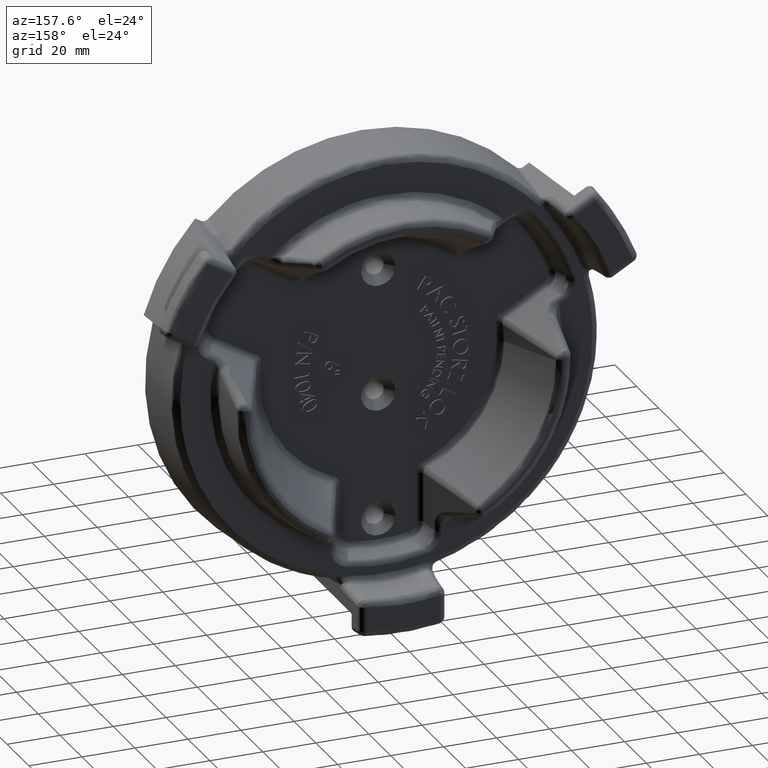
[diagram: clean part render]
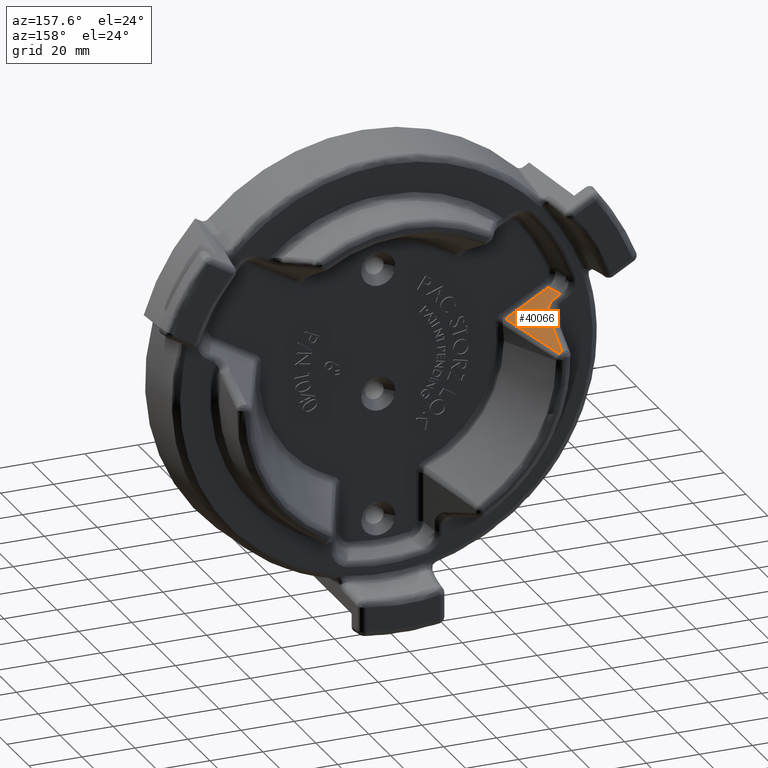
[diagram: same view with one face highlighted and labeled with its STEP entity id]
A machine part, auxiliary view. The second image highlights one B-rep face of the part: STEP entity #40066.
In plain terms, the highlighted planar face has unit normal (0.4532, 0.4226, 0.7849).
Its self-contained STEP definition (entity closure, byte-faithful):
#2890 = PLANE ( 'NONE',  #28716 ) ;
#2897 = CARTESIAN_POINT ( 'NONE',  ( -2.568653630999999700, 0.5091295380000001600, 0.7321792120000002500 ) ) ;
#2928 = DIRECTION ( 'NONE',  ( 0.4531538941523392000, 0.4226182619830112800, 0.7848855667248758600 ) ) ;
#2930 = DIRECTION ( 'NONE',  ( 0.8660254033445590200, 0.0000000000000000000, -0.5000000007618935500 ) ) ;
#7904 = CARTESIAN_POINT ( 'NONE',  ( -2.341099454531849300, 1.395870461851245400, 0.1233389055789617200 ) ) ;
#8159 = CARTESIAN_POINT ( 'NONE',  ( -2.362967724100074400, 0.8670287590276200000, 0.4207170999361812800 ) ) ;
#8199 = CARTESIAN_POINT ( 'NONE',  ( -2.501619528943516800, 0.5091295409397615900, 0.6934770535298403500 ) ) ;
#8250 = CARTESIAN_POINT ( 'NONE',  ( -2.520406490273561200, 0.6958704620152044200, 0.6037738635999748700 ) ) ;
#8272 = CARTESIAN_POINT ( 'NONE',  ( -2.608015006943183300, 0.6958704659244574500, 0.6543546623792001500 ) ) ;
#9823 = ORIENTED_EDGE ( 'NONE', *, *, #24463, .T. ) ;
#9857 = ORIENTED_EDGE ( 'NONE', *, *, #24575, .T. ) ;
#9884 = ORIENTED_EDGE ( 'NONE', *, *, #24580, .T. ) ;
#9949 = ORIENTED_EDGE ( 'NONE', *, *, #29890, .F. ) ;
#10425 = ORIENTED_EDGE ( 'NONE', *, *, #16935, .T. ) ;
#10462 = ORIENTED_EDGE ( 'NONE', *, *, #24467, .T. ) ;
#10463 = ORIENTED_EDGE ( 'NONE', *, *, #24578, .T. ) ;
#12229 = LINE ( 'NONE', #13858, #12249 ) ;
#12249 = VECTOR ( 'NONE', #13870, 39.37007874015748900 ) ;
#12623 = VECTOR ( 'NONE', #15595, 39.37007874015748900 ) ;
#12628 = LINE ( 'NONE', #17936, #12637 ) ;
#12637 = VECTOR ( 'NONE', #17940, 39.37007874015748900 ) ;
#13033 = LINE ( 'NONE', #15594, #12623 ) ;
#13858 = CARTESIAN_POINT ( 'NONE',  ( -2.319716769447766100, 1.395870461723433400, 0.1109936063826113300 ) ) ;
#13870 = DIRECTION ( 'NONE',  ( -0.8660254028427399900, 8.792265849453573400E-010, 0.5000000016310698300 ) ) ;
#15248 = B_SPLINE_CURVE_WITH_KNOTS ( 'NONE', 3,
 ( #17944, #17950, #17951, #17952 ),
 .UNSPECIFIED., .F., .F.,
 ( 4, 4 ),
 ( 0.0000000000000000000, 1.000000000000000000 ),
 .UNSPECIFIED. ) ;
#15265 = B_SPLINE_CURVE_WITH_KNOTS ( 'NONE', 3,
 ( #17953, #17957, #17958, #17959 ),
 .UNSPECIFIED., .F., .F.,
 ( 4, 4 ),
 ( 0.0000000000000000000, 1.000000000000000000 ),
 .UNSPECIFIED. ) ;
#15510 = CARTESIAN_POINT ( 'NONE',  ( -2.608015006943183300, 0.6958704659244574500, 0.6543546623792001500 ) ) ;
#15553 = CARTESIAN_POINT ( 'NONE',  ( -2.572345726670697700, 0.6327419460838940000, 0.6677522742691967000 ) ) ;
#15554 = CARTESIAN_POINT ( 'NONE',  ( -2.536880565388445000, 0.5704949704445545500, 0.6807930704699893800 ) ) ;
#15555 = CARTESIAN_POINT ( 'NONE',  ( -2.501619528943516800, 0.5091295409397615900, 0.6934770535298403500 ) ) ;
#15594 = CARTESIAN_POINT ( 'NONE',  ( -2.564210746471424300, 0.6958704619368619700, 0.6290642623416344800 ) ) ;
#15595 = DIRECTION ( 'NONE',  ( -0.8660254037321747400, 4.972662646149016100E-011, 0.5000000000905235900 ) ) ;
#16935 = EDGE_CURVE ( 'NONE', #37100, #42006, #12229, .T. ) ;
#17936 = CARTESIAN_POINT ( 'NONE',  ( -2.216309826999999900, 0.5091295380000001600, 0.5287534215000002600 ) ) ;
#17940 = DIRECTION ( 'NONE',  ( 0.8660254033445592400, 0.0000000000000000000, -0.5000000007618935500 ) ) ;
#17944 = CARTESIAN_POINT ( 'NONE',  ( -1.868144018131253900, 0.5091295355360172500, 0.3277397989862454500 ) ) ;
#17950 = CARTESIAN_POINT ( 'NONE',  ( -2.006873558424338500, 0.7847238391865623000, 0.2594427675358693700 ) ) ;
#17951 = CARTESIAN_POINT ( 'NONE',  ( -2.150270238410552100, 1.080304151306402400, 0.1830789300782457400 ) ) ;
#17952 = CARTESIAN_POINT ( 'NONE',  ( -2.298334084389318300, 1.395870461663595100, 0.09864830767486992800 ) ) ;
#17953 = CARTESIAN_POINT ( 'NONE',  ( -2.341099454531849300, 1.395870461851245400, 0.1233389055789617200 ) ) ;
#17957 = CARTESIAN_POINT ( 'NONE',  ( -2.353870750015259400, 1.226388382126582600, 0.2219693139084681400 ) ) ;
#17958 = CARTESIAN_POINT ( 'NONE',  ( -2.361160172913348900, 1.050107814888292300, 0.3210953784183154200 ) ) ;
#17959 = CARTESIAN_POINT ( 'NONE',  ( -2.362967724100074400, 0.8670287590276200000, 0.4207170999361812800 ) ) ;
#24463 = EDGE_CURVE ( 'NONE', #42911, #42870, #28819, .T. ) ;
#24467 = EDGE_CURVE ( 'NONE', #42898, #42911, #13033, .T. ) ;
#24575 = EDGE_CURVE ( 'NONE', #42870, #37408, #12628, .T. ) ;
#24578 = EDGE_CURVE ( 'NONE', #37408, #37100, #15248, .T. ) ;
#24580 = EDGE_CURVE ( 'NONE', #42006, #42850, #15265, .T. ) ;
#25791 = CARTESIAN_POINT ( 'NONE',  ( -2.520406490273561200, 0.6958704620152044200, 0.6037738635999748700 ) ) ;
#25796 = CARTESIAN_POINT ( 'NONE',  ( -2.508933902000000800, 0.6958704620000002400, 0.5971501610000001800 ) ) ;
#25797 = CARTESIAN_POINT ( 'NONE',  ( -2.497840662999999900, 0.6971231030000002400, 0.5900709980000002900 ) ) ;
#25798 = CARTESIAN_POINT ( 'NONE',  ( -2.484413024000000200, 0.7001343980000001000, 0.5806971280000002800 ) ) ;
#25799 = CARTESIAN_POINT ( 'NONE',  ( -2.481742282000000400, 0.7008118260000002500, 0.5787904160000004700 ) ) ;
#25800 = CARTESIAN_POINT ( 'NONE',  ( -2.476485735999999900, 0.7023002710000001400, 0.5749541020000003000 ) ) ;
#25801 = CARTESIAN_POINT ( 'NONE',  ( -2.473901723000000000, 0.7031102080000001300, 0.5730261140000002500 ) ) ;
#25802 = CARTESIAN_POINT ( 'NONE',  ( -2.466276472000000100, 0.7057282660000002700, 0.5672139910000001400 ) ) ;
#25803 = CARTESIAN_POINT ( 'NONE',  ( -2.461361696000000400, 0.7077241490000001400, 0.5633017690000001700 ) ) ;
#25804 = CARTESIAN_POINT ( 'NONE',  ( -2.447089482000000900, 0.7144127689999998400, 0.5514602440000001500 ) ) ;
#25805 = CARTESIAN_POINT ( 'NONE',  ( -2.438200456000000600, 0.7198009750000001800, 0.5434269060000002100 ) ) ;
#25806 = CARTESIAN_POINT ( 'NONE',  ( -2.427826398000001000, 0.7276308190000002600, 0.5332214950000001600 ) ) ;
#25807 = CARTESIAN_POINT ( 'NONE',  ( -2.425788753000000900, 0.7292519710000000500, 0.5311721570000000900 ) ) ;
#25808 = CARTESIAN_POINT ( 'NONE',  ( -2.421787861000001200, 0.7326047350000002300, 0.5270569600000000200 ) ) ;
#25809 = CARTESIAN_POINT ( 'NONE',  ( -2.419820200000000600, 0.7343405700000000800, 0.5249862770000001100 ) ) ;
#25810 = CARTESIAN_POINT ( 'NONE',  ( -2.414068488999999900, 0.7396780790000002700, 0.5187915660000002000 ) ) ;
#25811 = CARTESIAN_POINT ( 'NONE',  ( -2.410435604999999500, 0.7434069949999997400, 0.5146863009999996800 ) ) ;
#25812 = CARTESIAN_POINT ( 'NONE',  ( -2.400112272999999500, 0.7550805529999998800, 0.5024405459999999900 ) ) ;
#25813 = CARTESIAN_POINT ( 'NONE',  ( -2.393992682999999600, 0.7635082289999998200, 0.4943695530000000200 ) ) ;
#25814 = CARTESIAN_POINT ( 'NONE',  ( -2.385929983999999200, 0.7770946309999999800, 0.4823990120000000200 ) ) ;
#25815 = CARTESIAN_POINT ( 'NONE',  ( -2.383429672999999700, 0.7817818790000000700, 0.4784316280000000000 ) ) ;
#25816 = CARTESIAN_POINT ( 'NONE',  ( -2.379967272999999700, 0.7890564999999999400, 0.4725156220000000200 ) ) ;
#25817 = CARTESIAN_POINT ( 'NONE',  ( -2.378862151999999100, 0.7915209020000000300, 0.4705506330000000500 ) ) ;
#25818 = CARTESIAN_POINT ( 'NONE',  ( -2.376767362999999000, 0.7964882349999998800, 0.4666665670000000900 ) ) ;
#25819 = CARTESIAN_POINT ( 'NONE',  ( -2.375775129999999200, 0.7989963989999999700, 0.4647431910000000000 ) ) ;
#25820 = CARTESIAN_POINT ( 'NONE',  ( -2.371086827999999700, 0.8116583879999999000, 0.4552186050000000500 ) ) ;
#25821 = CARTESIAN_POINT ( 'NONE',  ( -2.368202418999999300, 0.8221726570000000800, 0.4478919270000000800 ) ) ;
#25822 = CARTESIAN_POINT ( 'NONE',  ( -2.364201981000000300, 0.8439865030000000000, 0.4338367020000000700 ) ) ;
#25823 = CARTESIAN_POINT ( 'NONE',  ( -2.363083613999999800, 0.8552858030000001200, 0.4271069530000000100 ) ) ;
#25824 = CARTESIAN_POINT ( 'NONE',  ( -2.362967724100074400, 0.8670287590276200000, 0.4207170999361812800 ) ) ;
#28716 = AXIS2_PLACEMENT_3D ( 'NONE', #2897, #2928, #2930 ) ;
#28819 = B_SPLINE_CURVE_WITH_KNOTS ( 'NONE', 3,
 ( #15510, #15553, #15554, #15555 ),
 .UNSPECIFIED., .F., .F.,
 ( 4, 4 ),
 ( 0.0000000000000000000, 1.000000000000000000 ),
 .UNSPECIFIED. ) ;
#29870 = B_SPLINE_CURVE_WITH_KNOTS ( 'NONE', 3,
 ( #25791, #25796, #25797, #25798, #25799, #25800, #25801, #25802, #25803, #25804, #25805, #25806, #25807, #25808, #25809, #25810, #25811, #25812, #25813, #25814, #25815, #25816, #25817, #25818, #25819, #25820, #25821, #25822, #25823, #25824 ),
 .UNSPECIFIED., .F., .F.,
 ( 4, 2, 2, 2, 2, 2, 2, 2, 2, 2, 2, 2, 2, 2, 4 ),
 ( 0.0000000000000000000, 0.1249999999999998300, 0.1562500000000006700, 0.1875000000000004200, 0.2500000000000005600, 0.3750000000000003900, 0.4062500000000000000, 0.4374999999999994400, 0.5000000000000001100, 0.6249999999999995600, 0.6875000000000003300, 0.7187499999999995600, 0.7500000000000006700, 0.8750000000000002200, 1.000000000000000000 ),
 .UNSPECIFIED. ) ;
#29890 = EDGE_CURVE ( 'NONE', #42898, #42850, #29870, .T. ) ;
#35839 = FACE_OUTER_BOUND ( 'NONE', #37676, .T. ) ;
#37100 = VERTEX_POINT ( 'NONE', #41008 ) ;
#37408 = VERTEX_POINT ( 'NONE', #41366 ) ;
#37676 = EDGE_LOOP ( 'NONE', ( #9949, #10462, #9823, #9857, #10463, #10425, #9884 ) ) ;
#40066 = ADVANCED_FACE ( 'NONE', ( #35839 ), #2890, .T. ) ;
#41008 = CARTESIAN_POINT ( 'NONE',  ( -2.298334084389318300, 1.395870461663595100, 0.09864830767486992800 ) ) ;
#41366 = CARTESIAN_POINT ( 'NONE',  ( -1.868144018131253900, 0.5091295355360172500, 0.3277397989862454500 ) ) ;
#42006 = VERTEX_POINT ( 'NONE', #7904 ) ;
#42850 = VERTEX_POINT ( 'NONE', #8159 ) ;
#42870 = VERTEX_POINT ( 'NONE', #8199 ) ;
#42898 = VERTEX_POINT ( 'NONE', #8250 ) ;
#42911 = VERTEX_POINT ( 'NONE', #8272 ) ;